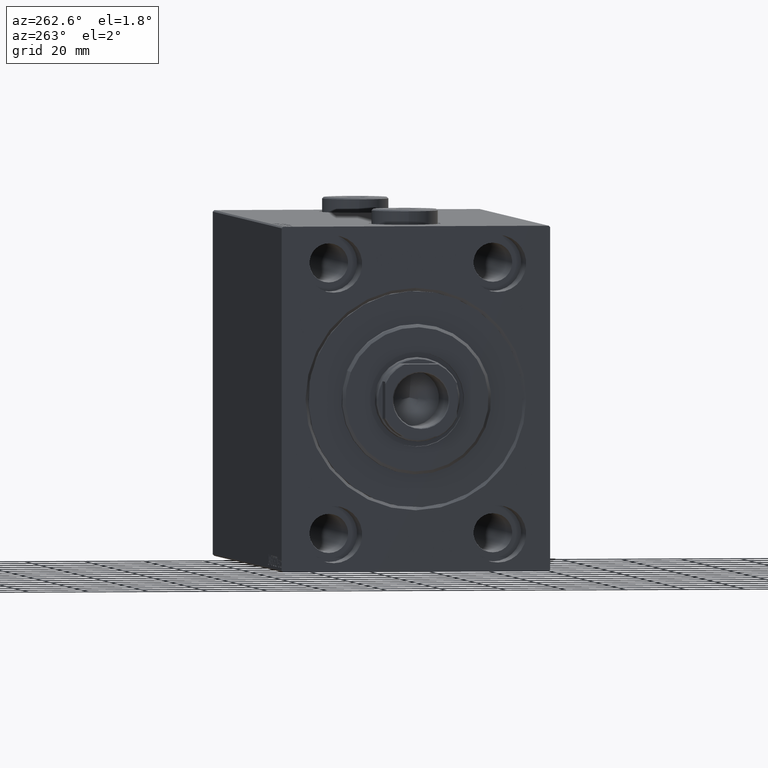
[diagram: clean part render]
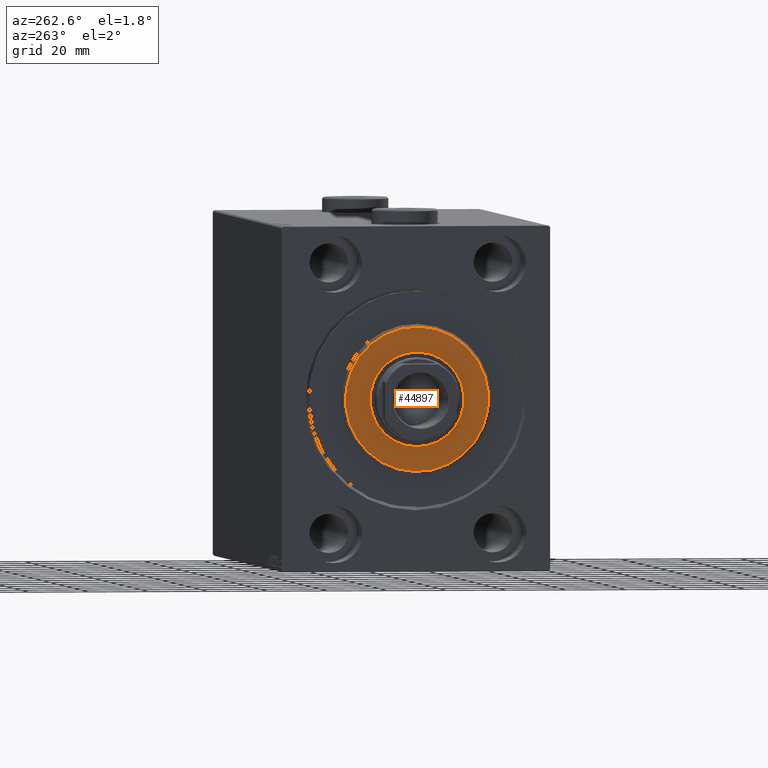
[diagram: same view with one face highlighted and labeled with its STEP entity id]
A machine part, auxiliary view. The second image highlights one B-rep face of the part: STEP entity #44897.
In plain terms, the highlighted planar face has unit normal (-1, 0, 0).
Its self-contained STEP definition (entity closure, byte-faithful):
#385 = VERTEX_POINT ( 'NONE', #1157 ) ;
#1017 = DIRECTION ( 'NONE',  ( 0.000000000000000000, 0.000000000000000000, -1.000000000000000000 ) ) ;
#1157 = CARTESIAN_POINT ( 'NONE',  ( 3.000000000000000000, 0.000000000000000000, 15.75000000000000000 ) ) ;
#2087 = CARTESIAN_POINT ( 'NONE',  ( 3.000000000000000000, 0.000000000000000000, 0.000000000000000000 ) ) ;
#2457 = DIRECTION ( 'NONE',  ( 1.000000000000000000, -0.000000000000000000, 0.000000000000000000 ) ) ;
#2573 = ORIENTED_EDGE ( 'NONE', *, *, #42695, .T. ) ;
#3723 = CARTESIAN_POINT ( 'NONE',  ( 3.000000000000000000, 1.928818708657080950E-15, -15.75000000000000000 ) ) ;
#4154 = ORIENTED_EDGE ( 'NONE', *, *, #37275, .T. ) ;
#4566 = AXIS2_PLACEMENT_3D ( 'NONE', #28838, #32283, #21486 ) ;
#6676 = CIRCLE ( 'NONE', #18387, 15.75000000000000000 ) ;
#13279 = VERTEX_POINT ( 'NONE', #3723 ) ;
#13592 = VERTEX_POINT ( 'NONE', #20571 ) ;
#14767 = FACE_OUTER_BOUND ( 'NONE', #34689, .T. ) ;
#15355 = CARTESIAN_POINT ( 'NONE',  ( 3.000000000000000000, 0.000000000000000000, 24.00000000000000711 ) ) ;
#16321 = DIRECTION ( 'NONE',  ( -1.000000000000000000, 0.000000000000000000, -0.000000000000000000 ) ) ;
#16391 = VERTEX_POINT ( 'NONE', #15355 ) ;
#16644 = DIRECTION ( 'NONE',  ( 0.000000000000000000, 0.000000000000000000, -1.000000000000000000 ) ) ;
#18387 = AXIS2_PLACEMENT_3D ( 'NONE', #40641, #16321, #44514 ) ;
#19182 = EDGE_CURVE ( 'NONE', #385, #13279, #37330, .T. ) ;
#19719 = DIRECTION ( 'NONE',  ( 0.000000000000000000, 0.000000000000000000, -1.000000000000000000 ) ) ;
#20571 = CARTESIAN_POINT ( 'NONE',  ( 3.000000000000000000, 3.000384657911015469E-15, -24.00000000000000711 ) ) ;
#21464 = CIRCLE ( 'NONE', #44851, 24.00000000000000711 ) ;
#21486 = DIRECTION ( 'NONE',  ( 0.000000000000000000, 0.000000000000000000, -1.000000000000000000 ) ) ;
#21873 = CARTESIAN_POINT ( 'NONE',  ( 3.000000000000000000, 0.000000000000000000, 0.000000000000000000 ) ) ;
#28776 = FACE_BOUND ( 'NONE', #38386, .T. ) ;
#28838 = CARTESIAN_POINT ( 'NONE',  ( 3.000000000000000000, 0.000000000000000000, 0.000000000000000000 ) ) ;
#30008 = AXIS2_PLACEMENT_3D ( 'NONE', #2087, #37842, #19719 ) ;
#30662 = CARTESIAN_POINT ( 'NONE',  ( 3.000000000000000000, 0.000000000000000000, 0.000000000000000000 ) ) ;
#32283 = DIRECTION ( 'NONE',  ( 1.000000000000000000, -0.000000000000000000, 0.000000000000000000 ) ) ;
#33062 = ORIENTED_EDGE ( 'NONE', *, *, #19182, .T. ) ;
#34689 = EDGE_LOOP ( 'NONE', ( #2573, #39618 ) ) ;
#34700 = AXIS2_PLACEMENT_3D ( 'NONE', #21873, #39768, #1017 ) ;
#37275 = EDGE_CURVE ( 'NONE', #13279, #385, #6676, .T. ) ;
#37330 = CIRCLE ( 'NONE', #30008, 15.75000000000000000 ) ;
#37842 = DIRECTION ( 'NONE',  ( -1.000000000000000000, 0.000000000000000000, -0.000000000000000000 ) ) ;
#38386 = EDGE_LOOP ( 'NONE', ( #33062, #4154 ) ) ;
#38959 = CIRCLE ( 'NONE', #4566, 24.00000000000000711 ) ;
#39309 = PLANE ( 'NONE',  #34700 ) ;
#39521 = EDGE_CURVE ( 'NONE', #13592, #16391, #38959, .T. ) ;
#39618 = ORIENTED_EDGE ( 'NONE', *, *, #39521, .T. ) ;
#39768 = DIRECTION ( 'NONE',  ( 1.000000000000000000, -0.000000000000000000, 0.000000000000000000 ) ) ;
#40641 = CARTESIAN_POINT ( 'NONE',  ( 3.000000000000000000, 0.000000000000000000, 0.000000000000000000 ) ) ;
#42695 = EDGE_CURVE ( 'NONE', #16391, #13592, #21464, .T. ) ;
#44514 = DIRECTION ( 'NONE',  ( 0.000000000000000000, 0.000000000000000000, -1.000000000000000000 ) ) ;
#44851 = AXIS2_PLACEMENT_3D ( 'NONE', #30662, #2457, #16644 ) ;
#44897 = ADVANCED_FACE ( 'NONE', ( #14767, #28776 ), #39309, .T. ) ;